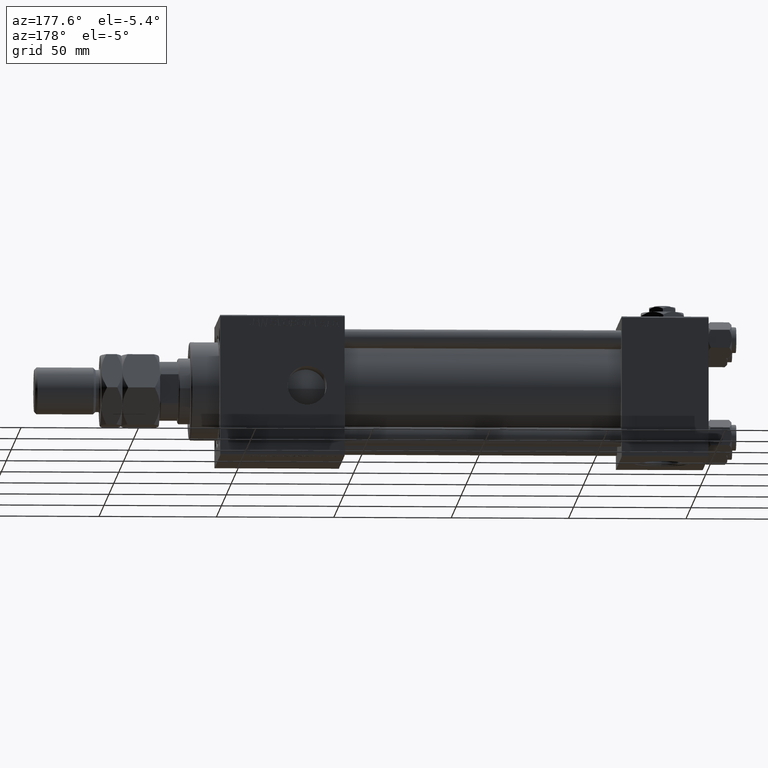
[diagram: clean part render]
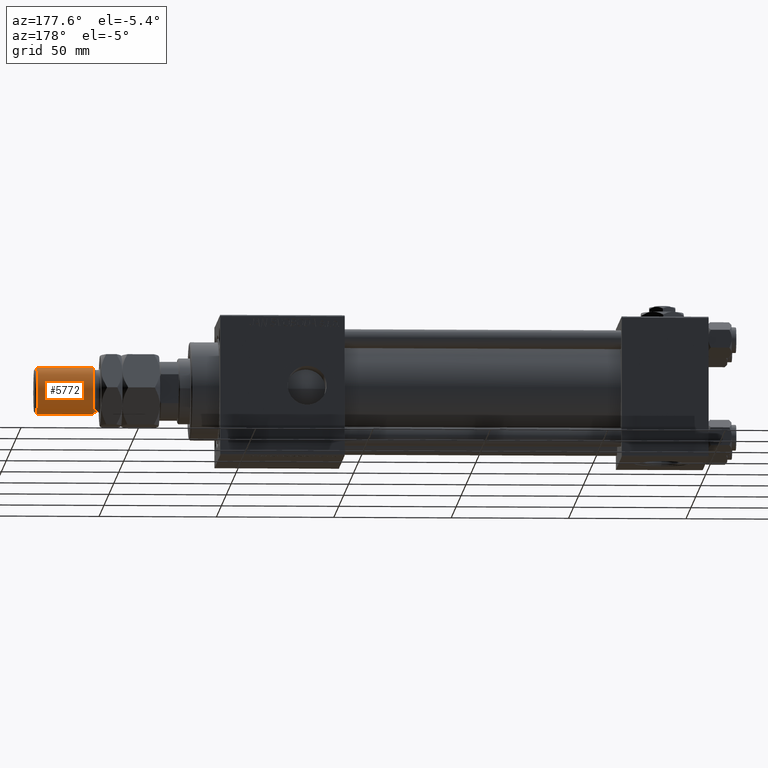
[diagram: same view with one face highlighted and labeled with its STEP entity id]
A machine part, auxiliary view. The second image highlights one B-rep face of the part: STEP entity #5772.
In plain terms, the highlighted cylindrical surface (edge-blend (fillet) strip) has radius 10 mm, axis along (-1, -0, 0).
Its self-contained STEP definition (entity closure, byte-faithful):
#905 = LINE ( 'NONE', #37733, #40954 ) ;
#3150 = DIRECTION ( 'NONE',  ( 0.000000000000000000, 0.000000000000000000, -1.000000000000000000 ) ) ;
#3616 = EDGE_CURVE ( 'NONE', #50908, #18335, #53449, .T. ) ;
#4085 = AXIS2_PLACEMENT_3D ( 'NONE', #48876, #11518, #44292 ) ;
#5772 = ADVANCED_FACE ( 'NONE', ( #18858 ), #48615, .T. ) ;
#7452 = VERTEX_POINT ( 'NONE', #47795 ) ;
#11518 = DIRECTION ( 'NONE',  ( -0.000000000000000000, -0.000000000000000000, -1.000000000000000000 ) ) ;
#13575 = DIRECTION ( 'NONE',  ( -0.000000000000000000, -0.000000000000000000, 1.000000000000000000 ) ) ;
#16099 = CARTESIAN_POINT ( 'NONE',  ( -10.00000000000000000, 0.000000000000000000, 53.00000000000000711 ) ) ;
#16295 = EDGE_CURVE ( 'NONE', #50908, #7452, #36415, .T. ) ;
#18020 = CARTESIAN_POINT ( 'NONE',  ( -10.00000000000000000, 0.000000000000000000, 52.00000000000004974 ) ) ;
#18335 = VERTEX_POINT ( 'NONE', #39480 ) ;
#18407 = EDGE_CURVE ( 'NONE', #18335, #20672, #905, .T. ) ;
#18763 = EDGE_CURVE ( 'NONE', #20672, #7452, #26270, .T. ) ;
#18858 = FACE_OUTER_BOUND ( 'NONE', #26206, .T. ) ;
#20672 = VERTEX_POINT ( 'NONE', #37584 ) ;
#22854 = ORIENTED_EDGE ( 'NONE', *, *, #18407, .T. ) ;
#26206 = EDGE_LOOP ( 'NONE', ( #50361, #22854, #35653, #34540 ) ) ;
#26270 = CIRCLE ( 'NONE', #53053, 10.00000000000000000 ) ;
#27551 = CARTESIAN_POINT ( 'NONE',  ( 0.000000000000000000, 0.000000000000000000, 52.00000000000004974 ) ) ;
#28075 = DIRECTION ( 'NONE',  ( 1.000000000000000000, 0.000000000000000000, 0.000000000000000000 ) ) ;
#34429 = AXIS2_PLACEMENT_3D ( 'NONE', #27551, #3150, #28075 ) ;
#34540 = ORIENTED_EDGE ( 'NONE', *, *, #16295, .F. ) ;
#35653 = ORIENTED_EDGE ( 'NONE', *, *, #18763, .T. ) ;
#36144 = DIRECTION ( 'NONE',  ( -0.000000000000000000, -0.000000000000000000, -1.000000000000000000 ) ) ;
#36415 = LINE ( 'NONE', #16099, #40027 ) ;
#37584 = CARTESIAN_POINT ( 'NONE',  ( 10.00000000000000000, 1.224646799147353059E-15, 28.00000000000002487 ) ) ;
#37733 = CARTESIAN_POINT ( 'NONE',  ( 10.00000000000000000, 1.224646799147353059E-15, 53.00000000000000711 ) ) ;
#39480 = CARTESIAN_POINT ( 'NONE',  ( 10.00000000000000000, 1.224646799147353059E-15, 52.00000000000004974 ) ) ;
#40027 = VECTOR ( 'NONE', #36144, 1000.000000000000000 ) ;
#40954 = VECTOR ( 'NONE', #46400, 1000.000000000000000 ) ;
#42828 = CARTESIAN_POINT ( 'NONE',  ( 0.000000000000000000, 0.000000000000000000, 28.00000000000002487 ) ) ;
#44292 = DIRECTION ( 'NONE',  ( -1.000000000000000000, 0.000000000000000000, 0.000000000000000000 ) ) ;
#46400 = DIRECTION ( 'NONE',  ( -0.000000000000000000, -0.000000000000000000, -1.000000000000000000 ) ) ;
#47795 = CARTESIAN_POINT ( 'NONE',  ( -10.00000000000000000, 0.000000000000000000, 28.00000000000002487 ) ) ;
#48615 = CYLINDRICAL_SURFACE ( 'NONE', #4085, 10.00000000000000000 ) ;
#48876 = CARTESIAN_POINT ( 'NONE',  ( 0.000000000000000000, 0.000000000000000000, 53.00000000000000711 ) ) ;
#50361 = ORIENTED_EDGE ( 'NONE', *, *, #3616, .T. ) ;
#50908 = VERTEX_POINT ( 'NONE', #18020 ) ;
#51484 = DIRECTION ( 'NONE',  ( 1.000000000000000000, 0.000000000000000000, 0.000000000000000000 ) ) ;
#53053 = AXIS2_PLACEMENT_3D ( 'NONE', #42828, #13575, #51484 ) ;
#53449 = CIRCLE ( 'NONE', #34429, 10.00000000000000000 ) ;